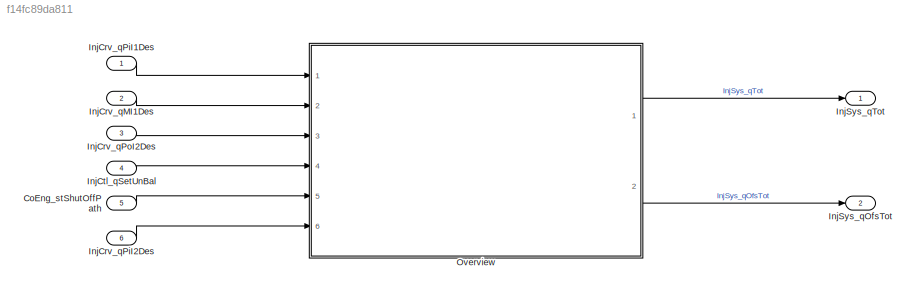
MODEL slx_f14fc89da811
KIND model
CONFIG AbsTol = auto
CONFIG EnableMultiTasking = off
CONFIG FixedStep = 0.001
CONFIG MaxStep = auto
CONFIG MinStep = auto
CONFIG RelTol = 1e-3
CONFIG SampleTimeConstraint = Unconstrained
CONFIG Solver = FixedStepDiscrete
CONFIG SolverName = FixedStepDiscrete
CONFIG StartTime = 0.0
CONFIG StopTime = Inf
BLOCK [Inport] CoEng_stShutOffPath
  Description = Active shut-off paths resulting from active reversible,irreversible and afterrun shut-off paths
  IconDisplay = Port number
  OutDataTypeStr = State2
  OutMax = 65535
  OutMin = 0
  Port = 5
  PortDimensions = [1 1]
BLOCK [Inport] InjCrv_qMI1Des
  Description = desired MI1 injection quantity
  IconDisplay = Port number
  OutDataTypeStr = InjMass
  OutMax = 319
  OutMin = -319
  Port = 2
  PortDimensions = [1 1]
  Unit = mg/hub
BLOCK [Inport] InjCrv_qPiI1Des
  Description = Desired PiI injection quantity
  IconDisplay = Port number
  OutDataTypeStr = InjMass
  OutMax = 319
  OutMin = -319
  PortDimensions = [1 1]
  Unit = mg/hub
BLOCK [Inport] InjCrv_qPiI2Des
  Description = Desired PiI injection quantity
  IconDisplay = Port number
  OutDataTypeStr = InjMass
  OutMax = 319
  OutMin = -319
  Port = 6
  PortDimensions = [1 1]
  Unit = mg/hub
BLOCK [Inport] InjCrv_qPoI2Des
  Description = Desired PoI2 injection quantity
  IconDisplay = Port number
  OutDataTypeStr = InjMass
  OutMax = 319
  OutMin = -319
  Port = 3
  PortDimensions = [1 1]
  Unit = mg/hub
BLOCK [Inport] InjCtl_qSetUnBal
  Description = Current injection quantity
  IconDisplay = Port number
  OutDataTypeStr = InjMass
  OutMax = 319
  OutMin = -319
  Port = 4
  PortDimensions = [1 1]
  Unit = mg/hub
BLOCK [Outport] InjSys_qOfsTot
  IconDisplay = Port number
  Port = 2
BLOCK [Outport] InjSys_qTot
  IconDisplay = Port number
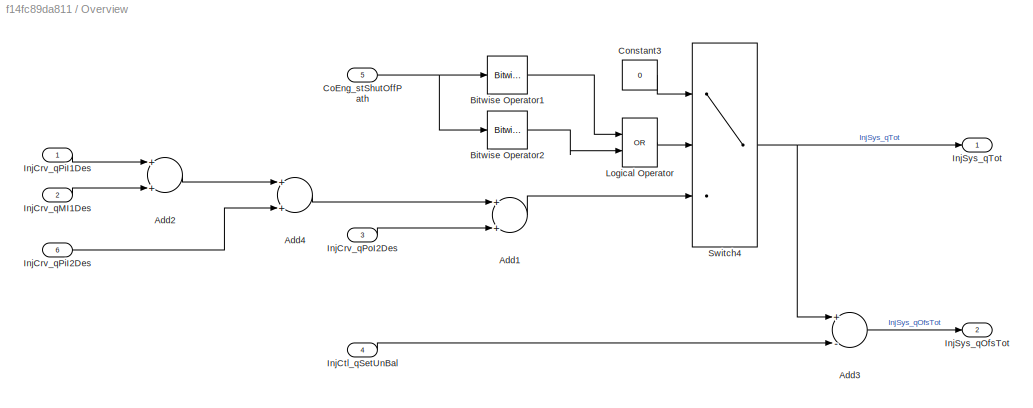
BLOCK [SubSystem] Overview
  Ports = [6, 2]
  RequestExecContextInheritance = off
BLOCK [Sum] Overview/Add1
  OutDataTypeStr = Inherit: Inherit via back propagation
  Ports = [2, 1]
BLOCK [Sum] Overview/Add2
  OutDataTypeStr = Inherit: Inherit via back propagation
  Ports = [2, 1]
BLOCK [Sum] Overview/Add3
  Inputs = +-
  OutDataTypeStr = Inherit: Inherit via back propagation
  Ports = [2, 1]
BLOCK [Sum] Overview/Add4
  OutDataTypeStr = Inherit: Inherit via back propagation
  Ports = [2, 1]
BLOCK [Reference] Overview/Bitwise Operator1  REF=simulink/Logic and Bit
Operations/Bitwise
Operator
  Ports = [1, 1]
  SourceBlock = simulink/Logic and Bit\nOperations/Bitwise\nOperator
  SourceProductBaseCode = SL
  SourceProductName = Simulink
  SourceType = Bitwise Operator
BLOCK [Reference] Overview/Bitwise Operator2  REF=simulink/Logic and Bit
Operations/Bitwise
Operator
  Ports = [1, 1]
  SourceBlock = simulink/Logic and Bit\nOperations/Bitwise\nOperator
  SourceProductBaseCode = SL
  SourceProductName = Simulink
  SourceType = Bitwise Operator
BLOCK [Inport] Overview/CoEng_stShutOffPath
  IconDisplay = Port number
  Port = 5
BLOCK [Constant] Overview/Constant3
  OutDataTypeStr = Inherit: Inherit via back propagation
  Value = 0
BLOCK [Inport] Overview/InjCrv_qMI1Des
  IconDisplay = Port number
  Port = 2
  Tag = mg/hub
BLOCK [Inport] Overview/InjCrv_qPiI1Des
  IconDisplay = Port number
  Tag = mg/hub
BLOCK [Inport] Overview/InjCrv_qPiI2Des
  IconDisplay = Port number
  Port = 6
  Tag = mg/hub
BLOCK [Inport] Overview/InjCrv_qPoI2Des
  IconDisplay = Port number
  Port = 3
  Tag = mg/hub
BLOCK [Inport] Overview/InjCtl_qSetUnBal
  IconDisplay = Port number
  Port = 4
  Tag = mg/hub
BLOCK [Outport] Overview/InjSys_qOfsTot
  IconDisplay = Port number
  Port = 2
  Tag = mg/hub
BLOCK [Outport] Overview/InjSys_qTot
  IconDisplay = Port number
  Tag = mg/hub
BLOCK [Logic] Overview/Logical Operator
  AllPortsSameDT = off
  Operator = OR
  OutDataTypeStr = boolean
  Ports = [2, 1]
BLOCK [Switch] Overview/Switch4
  Criteria = u2 ~= 0
LINE CoEng_stShutOffPath:1 -> Overview:5
LINE InjCrv_qMI1Des:1 -> Overview:2
LINE InjCrv_qPiI1Des:1 -> Overview:1
LINE InjCrv_qPiI2Des:1 -> Overview:6
LINE InjCrv_qPoI2Des:1 -> Overview:3
LINE InjCtl_qSetUnBal:1 -> Overview:4
LINE Overview/Add1:1 -> Overview/Switch4:3
LINE Overview/Add2:1 -> Overview/Add4:1
LINE Overview/Add3:1 -> Overview/InjSys_qOfsTot:1
LINE Overview/Add4:1 -> Overview/Add1:1
LINE Overview/Bitwise Operator1:1 -> Overview/Logical Operator:1
LINE Overview/Bitwise Operator2:1 -> Overview/Logical Operator:2
NET Overview/CoEng_stShutOffPath:1 -> Overview/Bitwise Operator1:1, Overview/Bitwise Operator2:1
LINE Overview/Constant3:1 -> Overview/Switch4:1
LINE Overview/InjCrv_qMI1Des:1 -> Overview/Add2:2
LINE Overview/InjCrv_qPiI1Des:1 -> Overview/Add2:1
LINE Overview/InjCrv_qPiI2Des:1 -> Overview/Add4:2
LINE Overview/InjCrv_qPoI2Des:1 -> Overview/Add1:2
LINE Overview/InjCtl_qSetUnBal:1 -> Overview/Add3:2
LINE Overview/Logical Operator:1 -> Overview/Switch4:2
NET Overview/Switch4:1 -> Overview/Add3:1, Overview/InjSys_qTot:1
LINE Overview:1 -> InjSys_qTot:1
LINE Overview:2 -> InjSys_qOfsTot:1
note: NET lines group one-source signal fan-out (src -> all destinations, sorted); 1:1 wires keep LINE
